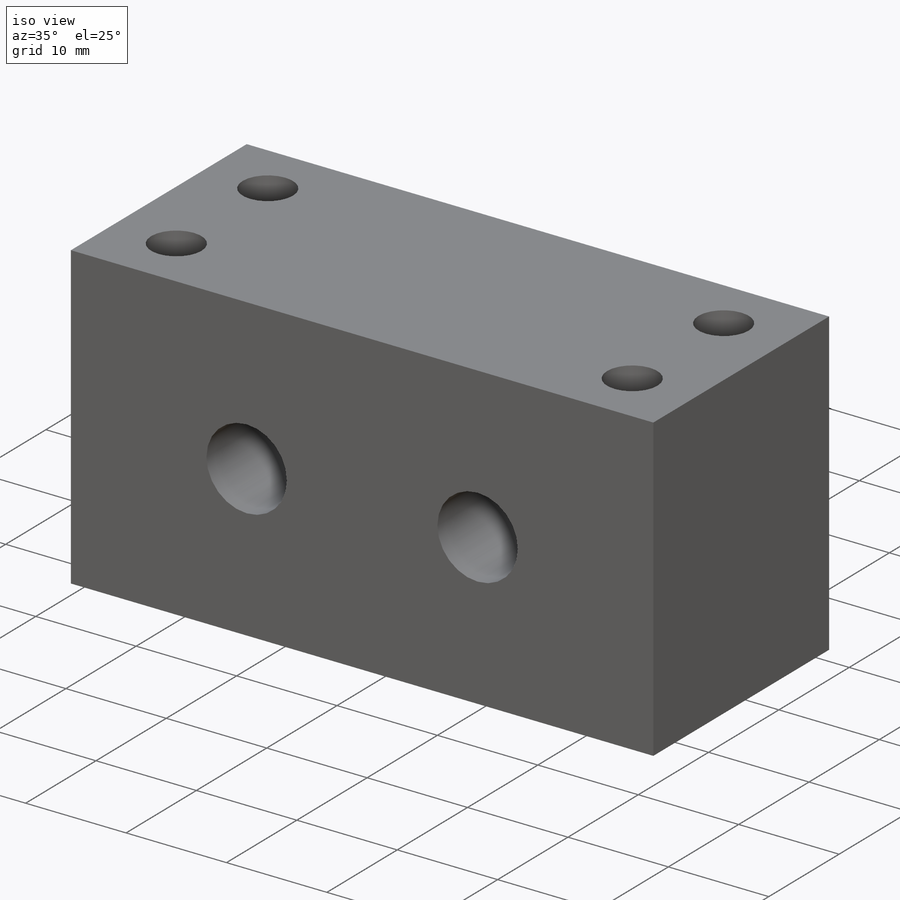
[diagram: iso view]
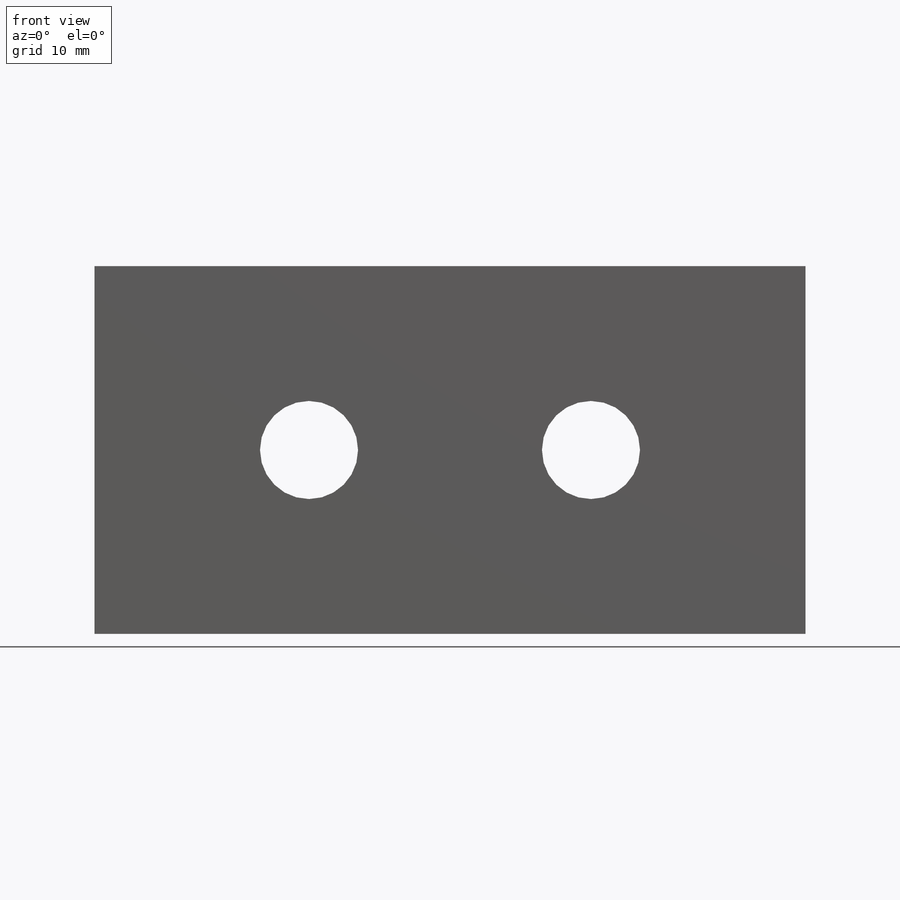
[diagram: front view]
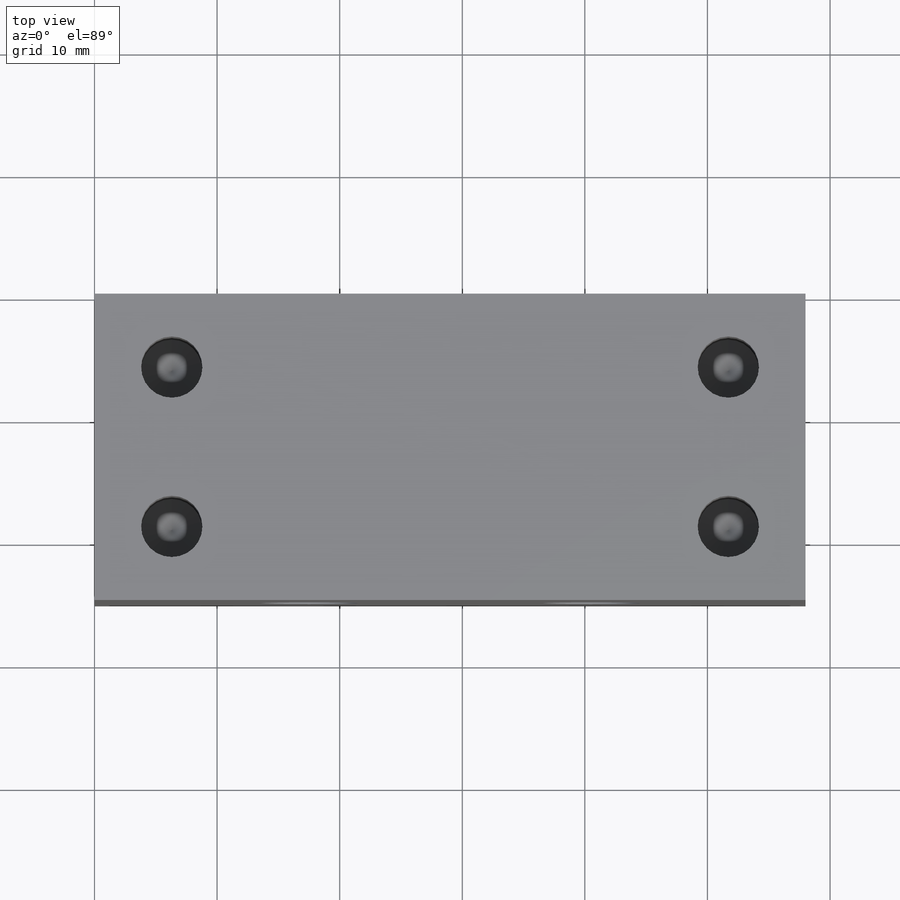
[diagram: top view]
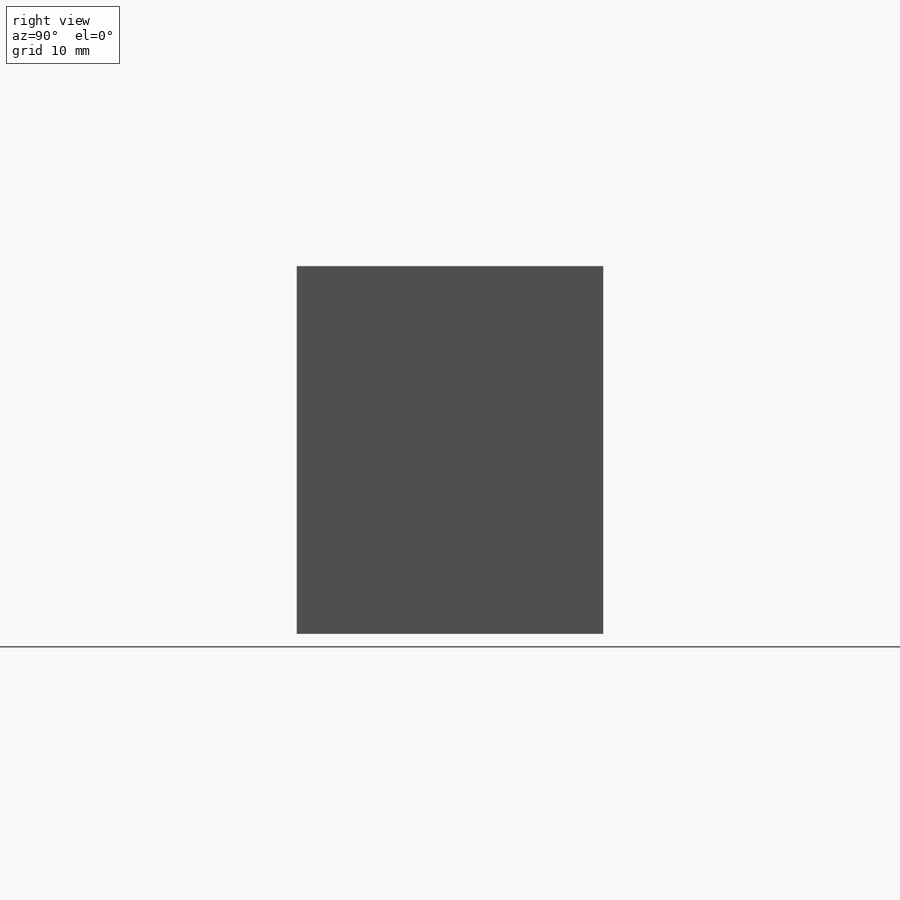
[diagram: right view]
SOLIDWORKS PART (.sldprt)
format: sldprt  version: not decoded by parser v0  size: 212,480 bytes
history: native  units: mm
features: sketch x7, plane x3, hole x2, material x1, extrude x1 (+10 scaffold rows collapsed)
feature tree (24):
  scaffold x10  (default folders/planes/origin — collapsed)
  material  "Matériau <non spécifié>"
  plane  "Plan de face"
  plane  "Plan de dessus"
  plane  "Plan de droite"
  sketch  "Esquisse1"  dims[D1=58.0mm D2=30.0mm]
  extrude  "Boss.-Extru.1"  Depth=25mm
  sketch  "Esquisse2"  dims[D1=6.0mm D2=6.3mm]
  hole  "Trou pour taraudage pour trou taraudé M61"  Diameter=5mm Depth=15mm
  sketch  "Esquisse3D1"
  sketch  "Esquisse3"  dims[hole-wizard template sketch: 47 standard entries collapsed; hole parameters kept: c15.Profondeur du perçage=15.0mm c15.D3=~14.816244mm c15.Angle de pointe=118.0deg]
  sketch  "Esquisse4"  dims[c1.D1=25.0mm c1.D2=17.5mm c2.D1=17.5mm]
  hole  "Diamètre du perçage Ø8.0 (8)1"  Diameter=8mm Depth=25mm
  sketch  "Esquisse3D3"
  sketch  "Esquisse6"  dims[hole-wizard template sketch: 59 standard entries collapsed; hole parameters kept: c18.Diamètre du perçage jusqu'au prochain=8.0mm c18.Profondeur du perçage jusqu'au prochain=25.0mm]
decode coverage: 8 of 10 modeling features carry decoded parameters
note: ~ marks probable driven/reference dimensions
note: suppression state not decoded; provenance and decode notes live in map.json
